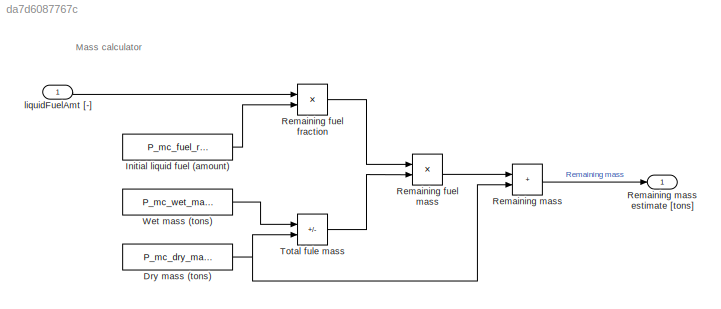
MODEL slx_da7d6087767c
KIND model
CONFIG AbsTol = auto
CONFIG EnableMultiTasking = off
CONFIG FixedStep = auto
CONFIG MaxStep = auto
CONFIG MinStep = auto
CONFIG RelTol = 1e-3
CONFIG SampleTimeConstraint = Unconstrained
CONFIG SolverName = FixedStepAuto
CONFIG StartTime = 0.0
CONFIG StopTime = 10.0
BLOCK [Constant] Dry mass (tons)
  OutDataTypeStr = double
  Value = P_mc_dry_mass_rocket
BLOCK [Constant] Initial liquid fuel (amount)
  OutDataTypeStr = double
  Value = P_mc_fuel_rocket
BLOCK [Product] Remaining fuel fraction
  Inputs = */
  Ports = [2, 1]
BLOCK [Product] Remaining fuel mass
  Inputs = **
  Ports = [2, 1]
BLOCK [Sum] Remaining mass
  IconShape = rectangular
  Ports = [2, 1]
BLOCK [Outport] Remaining mass estimate [tons]
BLOCK [Sum] Total fule mass
  IconShape = rectangular
  Inputs = +-
  Ports = [2, 1]
BLOCK [Constant] Wet mass (tons)
  OutDataTypeStr = double
  Value = P_mc_wet_mass_rocket
BLOCK [Inport] liquidFuelAmt [-]
ANNOTATION (root): Mass calculator
NET Dry mass (tons):1 -> Remaining mass:2, Total fule mass:2
LINE Initial liquid fuel (amount):1 -> Remaining fuel fraction:2
LINE Remaining fuel fraction:1 -> Remaining fuel mass:1
LINE Remaining fuel mass:1 -> Remaining mass:1
LINE Remaining mass:1 -> Remaining mass estimate [tons]:1
LINE Total fule mass:1 -> Remaining fuel mass:2
LINE Wet mass (tons):1 -> Total fule mass:1
LINE liquidFuelAmt [-]:1 -> Remaining fuel fraction:1
note: NET lines group one-source signal fan-out (src -> all destinations, sorted); 1:1 wires keep LINE
